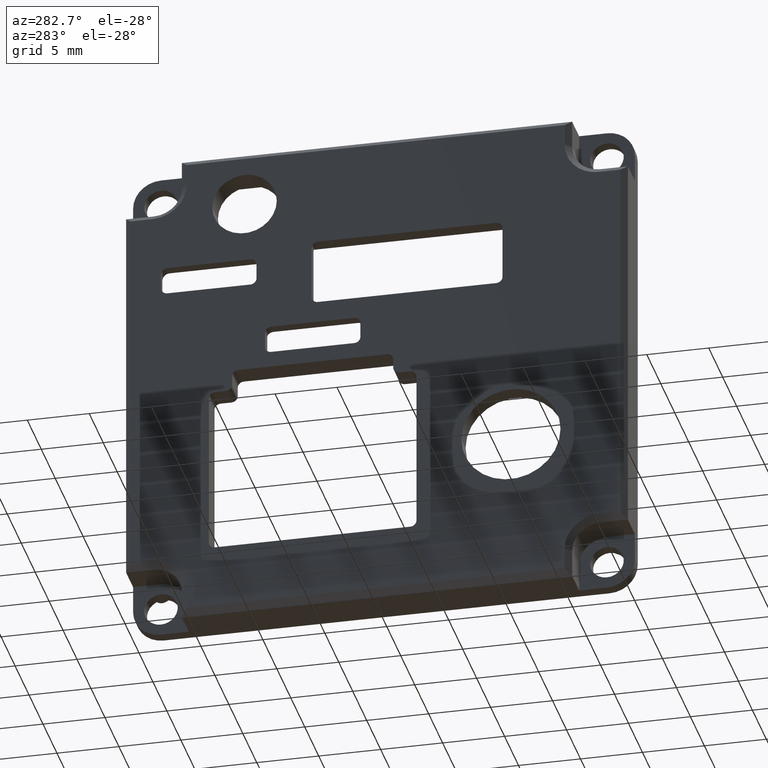
[diagram: clean part render]
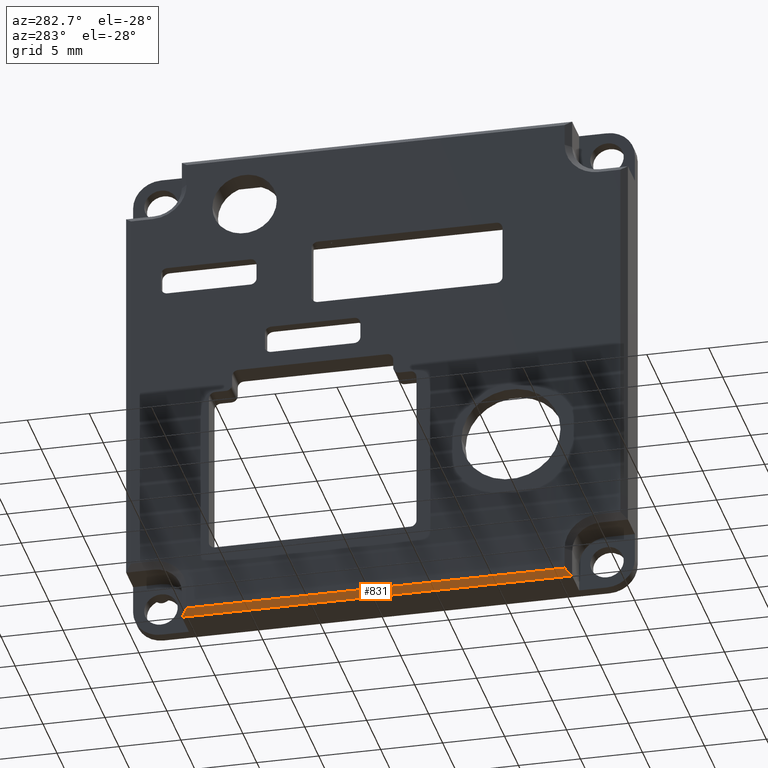
[diagram: same view with one face highlighted and labeled with its STEP entity id]
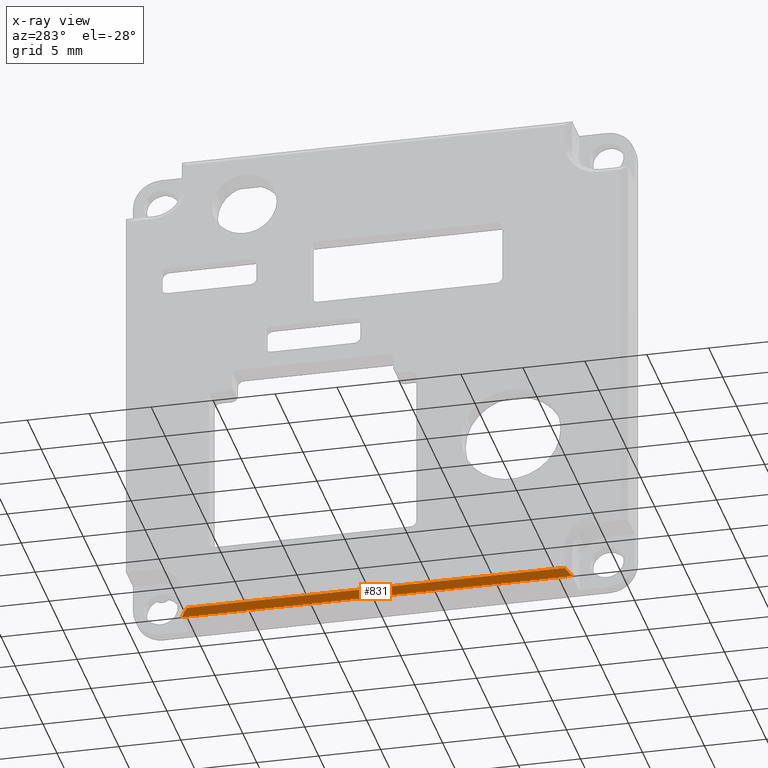
[diagram: x-ray of the same camera — body ghosted, the highlighted face saturated]
A machine part, auxiliary view. The second image highlights one B-rep face of the part: STEP entity #831.
The next image is the same camera in x-ray: the body ghosted, the highlighted face saturated — about 0% of this face is hidden behind the body in this view.
In plain terms, the highlighted planar face has unit normal (-0.7071, 0, -0.7071).
Its self-contained STEP definition (entity closure, byte-faithful):
#831=ADVANCED_FACE('',(#1256),#4235,.T.);
#1256=FACE_OUTER_BOUND('',#1729,.F.);
#1729=EDGE_LOOP('',(#3521,#3522,#3523,#3524));
#3521=ORIENTED_EDGE('',*,*,#7621,.T.);
#3522=ORIENTED_EDGE('',*,*,#6716,.F.);
#3523=ORIENTED_EDGE('',*,*,#7620,.F.);
#3524=ORIENTED_EDGE('',*,*,#6715,.T.);
#4235=PLANE('',#10595);
#6715=EDGE_CURVE('',#9843,#9844,#7793,.T.);
#6716=EDGE_CURVE('',#9842,#9841,#7794,.T.);
#7620=EDGE_CURVE('',#9843,#9842,#8415,.T.);
#7621=EDGE_CURVE('',#9844,#9841,#8416,.T.);
#7793=LINE('',#13913,#8557);
#7794=LINE('',#13914,#8558);
#8415=LINE('',#14818,#9179);
#8416=LINE('',#14819,#9180);
#8557=VECTOR('',#10812,30.4999962539143);
#8558=VECTOR('',#10813,31.4999962539146);
#9179=VECTOR('',#12000,0.866025404272539);
#9180=VECTOR('',#12001,0.866025403296492);
#9841=VERTEX_POINT('',#13580);
#9842=VERTEX_POINT('',#13581);
#9843=VERTEX_POINT('',#13582);
#9844=VERTEX_POINT('',#13583);
#10595=AXIS2_PLACEMENT_3D('',#15227,#12728,#12729);
#10812=DIRECTION('',(0.,-1.,0.));
#10813=DIRECTION('',(0.,-1.,0.));
#12000=DIRECTION('',(0.577350268864217,0.577350269840426,-0.577350268864234));
#12001=DIRECTION('',(0.577350269514931,-0.57735026853901,-0.577350269514936));
#12728=DIRECTION('',(-0.707106781186551,0.,-0.707106781186544));
#12729=DIRECTION('',(0.,-1.,0.));
#13580=CARTESIAN_POINT('',(-3.5,-15.7499999657572,-20.2499963021053));
#13581=CARTESIAN_POINT('',(-3.5,15.7499990977193,-20.2499981751457));
#13582=CARTESIAN_POINT('',(-3.99999999999999,15.2499987847005,-19.7499987994927));
#13583=CARTESIAN_POINT('',(-3.99999999999999,-15.2499999666021,-19.7499963021055));
#13913=CARTESIAN_POINT('',(-3.99999999999999,15.2499962873127,-19.7499963021049));
#13914=CARTESIAN_POINT('',(-3.5,15.7499962881582,-20.2499963021049));
#14818=CARTESIAN_POINT('',(-3.99999999999999,15.2500000333943,-19.7500000481865));
#14819=CARTESIAN_POINT('',(-3.99999999999999,-15.2499999666016,-19.7499963021049));
#15227=CARTESIAN_POINT('',(-4.48083260951213,34.6799999120097,-19.2691636925928));